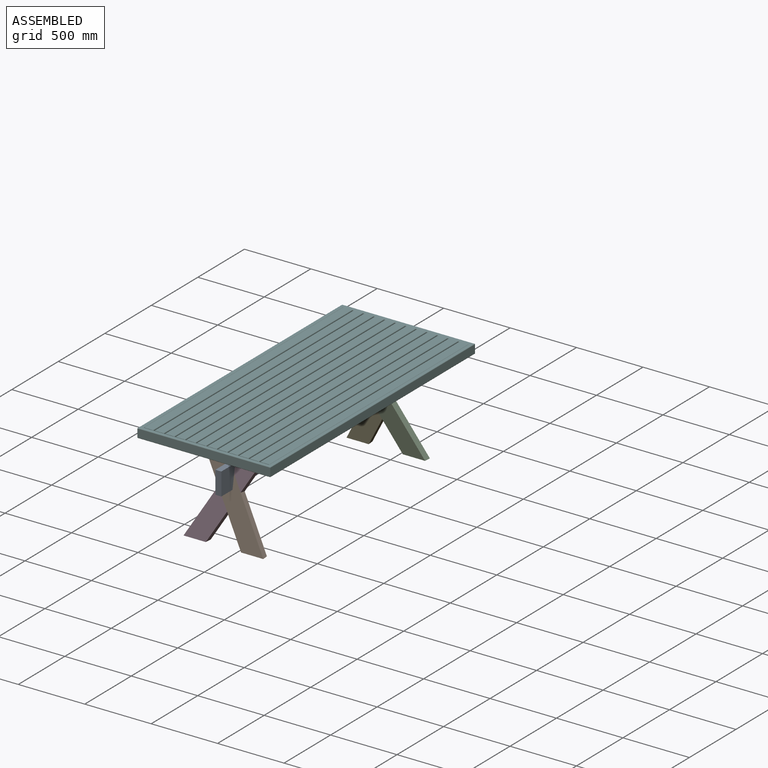
[diagram: assembled view]
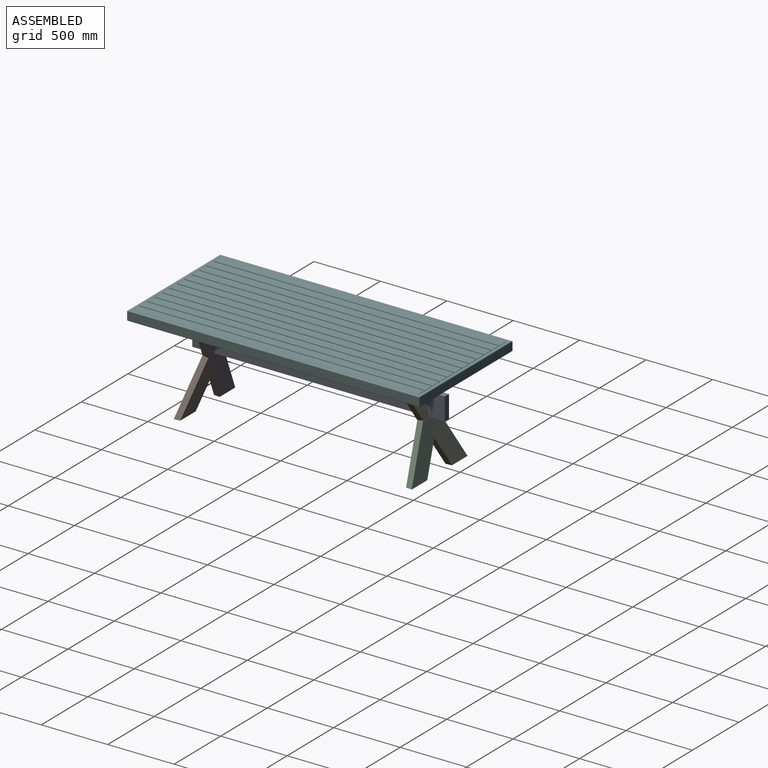
[diagram: assembled view, second angle]
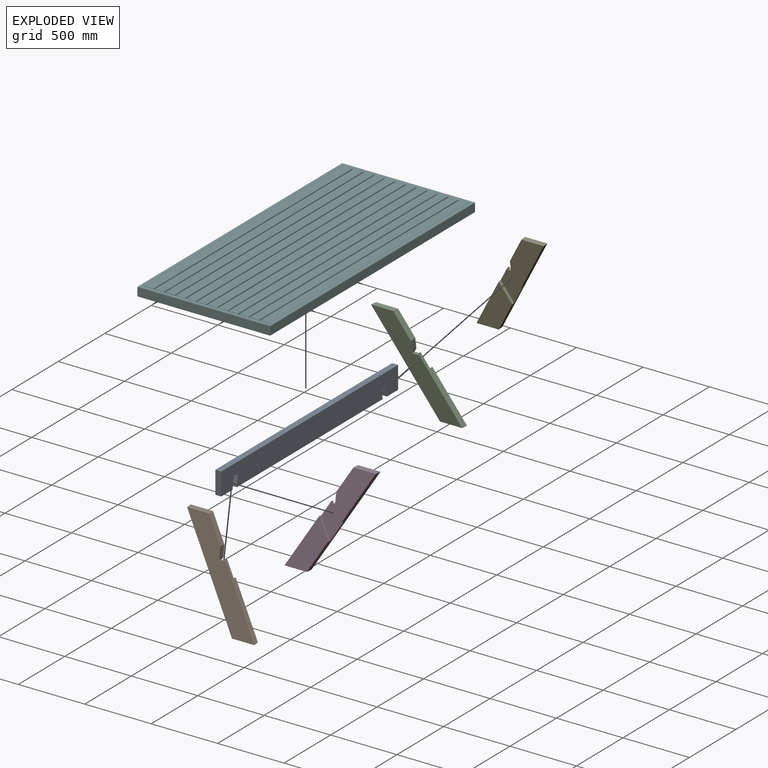
[diagram: exploded view]
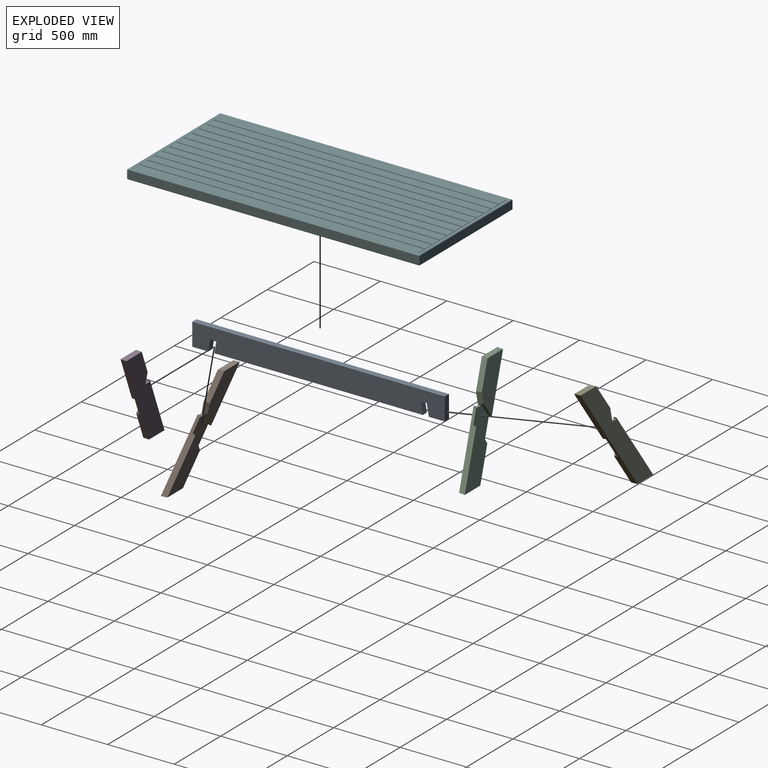
[diagram: exploded view, second angle]
ASSEMBLY  parts=6 mates=4
PART A: 14 faces, bbox 45x1900x170 mm
  f0: plane 1568.61x45mm, normal (0,0,-1), area 70587.5mm2, adj f2,f3,f9,f12
  f1: plane 120x45mm, normal (0,0,-1), area 5400mm2, adj f2,f3,f6,f10
  f2: plane 1900x170mm, normal (-1,0,0), area 315132.1mm2, adj f0,f1,f4,f5,f6,f7,f8,f9
  f3: plane 1900x170mm, normal (1,0,0), area 315132.1mm2, adj f0,f1,f4,f5,f6,f7,f8,f9
  f4: plane 120x45mm, normal (0,0,-1), area 5400mm2, adj f2,f3,f7,f11
  f5: plane 1900x45mm, normal (0,0,1), area 85500mm2, adj f2,f3,f6,f7
  f6: plane 170x45mm, normal (0,-1,0), area 7650mm2, adj f1,f2,f3,f5
  f7: plane 170x45mm, normal (0,1,0), area 7650mm2, adj f2,f3,f4,f5
  f8: plane 45x44.32mm, normal (0,-0.17,-0.98), area 2025mm2, adj f2,f3,f9,f10
  f9: plane 82.19x45mm, normal (0,-0.98,0.17), area 3755.4mm2, adj f0,f2,f3,f8
  f10: plane 90x45mm, normal (0,0.98,-0.17), area 4112.5mm2, adj f1,f2,f3,f8
  f11: plane 90x45mm, normal (0,-0.98,-0.17), area 4112.5mm2, adj f2,f3,f4,f13
  f12: plane 82.19x45mm, normal (0,0.98,0.17), area 3755.4mm2, adj f0,f2,f3,f13
  f13: plane 45x44.32mm, normal (0,0.17,-0.98), area 2025mm2, adj f2,f3,f11,f12
PART B: 14 faces, bbox 600.4x45x750 mm
  f0: plane 191.03x110.29mm, normal (-0.87,0,0.5), area 9720mm2, adj f2,f5,f10,f13
  f1: plane 481.03x277.72mm, normal (-0.87,0,0.5), area 22034.1mm2, adj f4,f5,f7,f8,f9,f12
  f2: plane 375x277.72mm, normal (0,-1,0), area 49771.2mm2, adj f0,f3,f6,f10,f13
  f3: plane 750x433.01mm, normal (0.87,0,-0.5), area 34791.6mm2, adj f2,f4,f5,f6,f7,f8,f12,f13
  f4: plane 367.07x295.64mm, normal (0,-1,0), area 49319.5mm2, adj f1,f3,f7,f12
  f5: plane 742.07x595.86mm, normal (0,1,0), area 121948.9mm2, adj f0,f1,f3,f9,f10,f11,f12,f13
  f6: plane 106.03x61.22mm, normal (-0.87,0,-0.5), area 2754.7mm2, adj f2,f3,f8,f10
  f7: plane 145x83.72mm, normal (0.87,0,0.5), area 3767.2mm2, adj f1,f3,f4,f8
  f8: plane 251.03x167.43mm, normal (0,-1,0), area 22858.1mm2, adj f1,f3,f6,f7,f9,f10,f11
  f9: plane 22.5x12.06mm, normal (1,0,0), area 271.3mm2, adj f1,f5,f8,f11
  f10: plane 90x45mm, normal (-1,0,0), area 3778.7mm2, adj f0,f2,f5,f6,f8,f11
  f11: plane 45x22.5mm, normal (0,0,1), area 1012.5mm2, adj f5,f8,f9,f10
  f12: plane 172.01x45mm, normal (0,-0.17,-0.98), area 7650.7mm2, adj f1,f3,f4,f5
  f13: plane 172.01x45mm, normal (0,0.17,0.98), area 7650.7mm2, adj f0,f2,f3,f5
PART C: 14 faces, bbox 600.4x45x750 mm
  f0: plane 191.03x110.29mm, normal (-0.87,0,0.5), area 9720mm2, adj f2,f5,f10,f12
  f1: plane 481.03x277.72mm, normal (-0.87,0,0.5), area 22034.1mm2, adj f4,f5,f7,f8,f9,f13
  f2: plane 367.07x273.14mm, normal (0,-1,0), area 48442.7mm2, adj f0,f3,f6,f10,f12
  f3: plane 750x433.01mm, normal (0.87,0,-0.5), area 34791.6mm2, adj f2,f4,f5,f6,f7,f8,f12,f13
  f4: plane 375x300.22mm, normal (0,-1,0), area 50648.1mm2, adj f1,f3,f7,f13
  f5: plane 742.07x595.86mm, normal (0,1,0), area 121948.9mm2, adj f0,f1,f3,f9,f10,f11,f12,f13
  f6: plane 106.03x61.22mm, normal (-0.87,0,-0.5), area 2754.7mm2, adj f2,f3,f8,f10
  f7: plane 145x83.72mm, normal (0.87,0,0.5), area 3767.2mm2, adj f1,f3,f4,f8
  f8: plane 251.03x167.43mm, normal (0,-1,0), area 22858.1mm2, adj f1,f3,f6,f7,f9,f10,f11
  f9: plane 22.5x12.06mm, normal (1,0,0), area 271.3mm2, adj f1,f5,f8,f11
  f10: plane 90x45mm, normal (-1,0,0), area 3778.7mm2, adj f0,f2,f5,f6,f8,f11
  f11: plane 45x22.5mm, normal (0,0,1), area 1012.5mm2, adj f5,f8,f9,f10
  f12: plane 172.01x45mm, normal (0,-0.17,0.98), area 7650.7mm2, adj f0,f2,f3,f5
  f13: plane 172.01x45mm, normal (0,0.17,-0.98), area 7650.7mm2, adj f1,f3,f4,f5
PART D: same geometry as C
PART E: same geometry as B
PART F: 217 faces, bbox 1000x2200x70 mm
  f0: plane 356.89x42mm, normal (-1,0,0), area 14833.6mm2, adj f44,f60,f112,f216
  f1: plane 356.89x42mm, normal (1,0,0), area 14833.6mm2, adj f44,f60,f189,f216
  f2: plane 356.89x42mm, normal (1,0,0), area 14833.6mm2, adj f20,f60,f184,f215
  f3: plane 356.89x42mm, normal (-1,0,0), area 14833.6mm2, adj f20,f60,f107,f215
  f4: plane 356.89x42mm, normal (1,0,0), area 14989.2mm2, adj f16,f60,f68,f208
  f5: plane 647.62x42mm, normal (1,0,0), area 27199.8mm2, adj f60,f69,f72,f207
  f6: plane 647.62x42mm, normal (1,0,0), area 27199.8mm2, adj f60,f63,f71,f205
  f7: plane 45x9.5mm, normal (0,0,1), area 427.5mm2, adj f71,f72,f199,f210
  f8: plane 45x9.5mm, normal (0,0,1), area 427.5mm2, adj f63,f64,f199,f210
  f9: plane 45x9.5mm, normal (0,0,1), area 427.5mm2, adj f68,f69,f199,f210
  f10: plane 144x65mm, normal (0,1,0), area 6266.5mm2, adj f52,f60,f65,f82,f195,f199,f206,f210
  f11: plane 23x9.5mm, normal (0,-1,0), area 218.5mm2, adj f14,f83,f188,f201
  f12: plane 45x9.5mm, normal (0,0,1), area 427.5mm2, adj f71,f72,f188,f201
  f13: plane 401.89x9.5mm, normal (0,0,1), area 3817.9mm2, adj f15,f63,f188,f201
  f14: plane 401.89x9.5mm, normal (0,0,1), area 3817.9mm2, adj f11,f69,f188,f201
  f15: plane 23x9.5mm, normal (0,1,0), area 218.5mm2, adj f13,f82,f188,f201
  f16: plane 144x65mm, normal (0,-1,0), area 6266.5mm2, adj f4,f60,f67,f83,f199,f200,f208,f210
  f17: plane 45x9.5mm, normal (0,0,1), area 427.5mm2, adj f71,f72,f177,f190
  f18: plane 45x9.5mm, normal (0,0,1), area 427.5mm2, adj f63,f177,f190,f215
  f19: plane 45x9.5mm, normal (0,0,1), area 427.5mm2, adj f69,f177,f190,f216
  f20: plane 600x65mm, normal (0,1,0), area 26729.5mm2, adj f2,f3,f60,f82,f107,f111,f118,f122
  f21: plane 45x9.5mm, normal (0,0,1), area 427.5mm2, adj f71,f72,f166,f179
  f22: plane 45x9.5mm, normal (0,0,1), area 427.5mm2, adj f63,f166,f179,f215
  f23: plane 45x9.5mm, normal (0,0,1), area 427.5mm2, adj f69,f166,f179,f216
  f24: plane 45x9.5mm, normal (0,0,1), area 427.5mm2, adj f71,f72,f155,f168
  f25: plane 45x9.5mm, normal (0,0,1), area 427.5mm2, adj f63,f155,f168,f215
  f26: plane 45x9.5mm, normal (0,0,1), area 427.5mm2, adj f69,f155,f168,f216
  f27: plane 45x9.5mm, normal (0,0,1), area 427.5mm2, adj f71,f72,f144,f157
  f28: plane 45x9.5mm, normal (0,0,1), area 427.5mm2, adj f63,f144,f157,f215
  f29: plane 45x9.5mm, normal (0,0,1), area 427.5mm2, adj f69,f144,f157,f216
  f30: plane 45x9.5mm, normal (0,0,1), area 427.5mm2, adj f71,f72,f133,f146
  f31: plane 45x9.5mm, normal (0,0,1), area 427.5mm2, adj f63,f133,f146,f215
  f32: plane 45x9.5mm, normal (0,0,1), area 427.5mm2, adj f69,f133,f146,f216
  f33: plane 45x9.5mm, normal (0,0,1), area 427.5mm2, adj f71,f72,f122,f135
  f34: plane 45x9.5mm, normal (0,0,1), area 427.5mm2, adj f63,f122,f135,f215
  f35: plane 45x9.5mm, normal (0,0,1), area 427.5mm2, adj f69,f122,f135,f216
  f36: plane 45x9.5mm, normal (0,0,1), area 427.5mm2, adj f71,f72,f111,f124
  f37: plane 45x9.5mm, normal (0,0,1), area 427.5mm2, adj f63,f111,f124,f215
  f38: plane 45x9.5mm, normal (0,0,1), area 427.5mm2, adj f69,f111,f124,f216
  f39: plane 23x9.5mm, normal (0,-1,0), area 218.5mm2, adj f42,f83,f100,f113
  f40: plane 45x9.5mm, normal (0,0,1), area 427.5mm2, adj f71,f72,f100,f113
  f41: plane 401.89x9.5mm, normal (0,0,1), area 3817.9mm2, adj f43,f63,f100,f113
  f42: plane 401.89x9.5mm, normal (0,0,1), area 3817.9mm2, adj f39,f69,f100,f113
  f43: plane 23x9.5mm, normal (0,1,0), area 218.5mm2, adj f41,f82,f100,f113
  f44: plane 600x65mm, normal (0,-1,0), area 26729.5mm2, adj f0,f1,f60,f83,f111,f112,f122,f123
  f45: plane 45x9.5mm, normal (0,0,1), area 427.5mm2, adj f71,f72,f93,f102
  f46: plane 356.89x42mm, normal (-1,0,0), area 14989.2mm2, adj f53,f60,f62,f85
  f47: plane 647.62x42mm, normal (-1,0,0), area 27199.8mm2, adj f60,f63,f71,f87
  f48: plane 647.62x42mm, normal (-1,0,0), area 27199.8mm2, adj f60,f69,f72,f86
  f49: plane 356.89x42mm, normal (-1,0,0), area 14989.2mm2, adj f58,f60,f70,f89
  f50: plane 45x9.5mm, normal (0,0,1), area 427.5mm2, adj f62,f63,f93,f102
  f51: plane 45x9.5mm, normal (0,0,1), area 427.5mm2, adj f69,f70,f93,f102
  f52: plane 356.89x42mm, normal (1,0,0), area 14989.2mm2, adj f10,f60,f64,f206
  f53: plane 144x65mm, normal (0,1,0), area 6266.5mm2, adj f46,f60,f61,f82,f85,f93,f96,f102
  f54: plane 1000x60mm, normal (0,-1,0), area 60000mm2, adj f55,f57,f76,f78
  f55: plane 2200x60mm, normal (1,0,0), area 132000mm2, adj f54,f56,f74,f77
  f56: plane 1000x60mm, normal (0,1,0), area 60000mm2, adj f55,f57,f73,f79
  f57: plane 2200x60mm, normal (-1,0,0), area 132000mm2, adj f54,f56,f75,f80
  f58: plane 144x65mm, normal (0,-1,0), area 6266.5mm2, adj f49,f60,f66,f83,f89,f93,f101,f102
  f59: plane 2190x990mm, normal (0,0,1), area 113184mm2, adj f77,f78,f79,f80,f81,f82,f83,f84
  f60: plane 2190x990mm, normal (0,0,-1), area 320462mm2, adj f0,f1,f2,f3,f4,f5,f6,f10
  f61: plane 356.89x42mm, normal (1,0,0), area 14989.2mm2, adj f53,f60,f62,f96
  f62: plane 144x42mm, normal (0,-1,0), area 6048mm2, adj f46,f50,f60,f61,f85,f96
  f63: plane 944x42mm, normal (0,1,0), area 39648mm2, adj f6,f8,f13,f18,f22,f25,f28,f31
  f64: plane 144x42mm, normal (0,-1,0), area 6048mm2, adj f8,f52,f60,f65,f195,f206
  f65: plane 356.89x42mm, normal (-1,0,0), area 14989.2mm2, adj f10,f60,f64,f195
  f66: plane 356.89x42mm, normal (1,0,0), area 14989.2mm2, adj f58,f60,f70,f101
  f67: plane 356.89x42mm, normal (-1,0,0), area 14989.2mm2, adj f16,f60,f68,f200
  f68: plane 144x42mm, normal (0,1,0), area 6048mm2, adj f4,f9,f60,f67,f200,f208
  f69: plane 944x42mm, normal (0,-1,0), area 39648mm2, adj f5,f9,f14,f19,f23,f26,f29,f32
  f70: plane 144x42mm, normal (0,1,0), area 6048mm2, adj f49,f51,f60,f66,f89,f101
  f71: plane 944x42mm, normal (0,-1,0), area 39648mm2, adj f6,f7,f12,f17,f21,f24,f27,f30
  f72: plane 944x42mm, normal (0,1,0), area 39648mm2, adj f5,f7,f12,f17,f21,f24,f27,f30
  f73: cylinder r=5mm len=1000mm, axis (-1,0,0), area 7825.4mm2, adj f56,f60,f74,f75
  f74: cylinder r=5mm len=2200mm, axis (0,1,0), area 17250.2mm2, adj f55,f60,f73,f76
  f75: cylinder r=5mm len=2200mm, axis (0,-1,0), area 17250.2mm2, adj f57,f60,f73,f76
  f76: cylinder r=5mm len=1000mm, axis (1,0,0), area 7825.4mm2, adj f54,f60,f74,f75
  f77: cylinder r=5mm len=2200mm, axis (0,-1,0), area 17250.2mm2, adj f55,f59,f78,f79
  f78: cylinder r=5mm len=1000mm, axis (-1,0,0), area 7825.4mm2, adj f54,f59,f77,f80
  f79: cylinder r=5mm len=1000mm, axis (1,0,0), area 7825.4mm2, adj f56,f59,f77,f80
  f80: cylinder r=5mm len=2200mm, axis (0,1,0), area 17250.2mm2, adj f57,f59,f78,f79
  f81: cylinder r=5mm len=2154mm, axis (0,1,0), area 16867.5mm2, adj f59,f82,f83,f90
  f82: cylinder r=5mm len=954mm, axis (1,0,0), area 7442.7mm2, adj f10,f15,f20,f43,f53,f59,f81,f84
  f83: cylinder r=5mm len=954mm, axis (-1,0,0), area 7442.7mm2, adj f11,f16,f39,f44,f58,f59,f81,f84
  f84: cylinder r=5mm len=2154mm, axis (0,-1,0), area 13463.2mm2, adj f59,f82,f83,f209,f213,f214
  f85: plane 356.89x70mm, normal (0,0,-1), area 24981.9mm2, adj f46,f53,f62,f93
  f86: plane 647.62x70mm, normal (0,0,-1), area 45333.1mm2, adj f48,f69,f72,f93
  f87: plane 647.62x70mm, normal (0,0,-1), area 45333.1mm2, adj f47,f63,f71,f93
  f88: plane 70x5mm, normal (0,1,0), area 339.3mm2, adj f83,f90,f91,f92
  f89: plane 356.89x70mm, normal (0,0,-1), area 24981.9mm2, adj f49,f58,f70,f93
  f90: cylinder r=5mm len=2144mm, axis (0,1,0), area 16838.9mm2, adj f81,f88,f91,f94
  f91: plane 2144x60mm, normal (0,0,1), area 128640mm2, adj f88,f90,f92,f94
  f92: cylinder r=5mm len=2144mm, axis (0,1,0), area 16838.9mm2, adj f88,f91,f93,f94
  f93: plane 2144x23mm, normal (-1,0,0), area 49312mm2, adj f45,f50,f51,f53,f58,f85,f86,f87
  f94: plane 70x5mm, normal (0,-1,0), area 339.3mm2, adj f82,f90,f91,f92
  f95: plane 647.62x70mm, normal (0,0,-1), area 45333.1mm2, adj f63,f71,f100,f102
  f96: plane 356.89x64.5mm, normal (0,0,-1), area 23019.1mm2, adj f53,f61,f62,f102
  f97: plane 647.62x70mm, normal (0,0,-1), area 45333.1mm2, adj f69,f72,f100,f102
  f98: plane 70x5mm, normal (0,1,0), area 339.3mm2, adj f83,f99,f103,f104
  f99: cylinder r=5mm len=2144mm, axis (0,1,0), area 16838.9mm2, adj f98,f100,f104,f105
  f100: plane 2144x23mm, normal (-1,0,0), area 49312mm2, adj f39,f40,f41,f42,f43,f95,f97,f99
  f101: plane 356.89x64.5mm, normal (0,0,-1), area 23019.1mm2, adj f58,f66,f70,f102
  f102: plane 2144x23mm, normal (1,0,0), area 49312mm2, adj f45,f50,f51,f53,f58,f95,f96,f97
  f103: cylinder r=5mm len=2144mm, axis (0,1,0), area 16838.9mm2, adj f98,f102,f104,f105
  f104: plane 2144x60mm, normal (0,0,1), area 128640mm2, adj f98,f99,f103,f105
  f105: plane 70x5mm, normal (0,-1,0), area 339.3mm2, adj f82,f99,f103,f104
  f106: plane 647.62x70mm, normal (0,0,-1), area 45333.1mm2, adj f63,f71,f111,f113
  f107: plane 356.89x57mm, normal (0,0,-1), area 20342.4mm2, adj f3,f20,f111,f215
  f108: plane 647.62x70mm, normal (0,0,-1), area 45333.1mm2, adj f69,f72,f111,f113
  f109: plane 70x5mm, normal (0,1,0), area 339.3mm2, adj f83,f110,f114,f115
  f110: cylinder r=5mm len=2144mm, axis (0,1,0), area 16838.9mm2, adj f109,f111,f115,f116
  f111: plane 2144x23mm, normal (-1,0,0), area 49312mm2, adj f20,f36,f37,f38,f44,f106,f107,f108
  f112: plane 356.89x57mm, normal (0,0,-1), area 20342.4mm2, adj f0,f44,f111,f216
  f113: plane 2144x23mm, normal (1,0,0), area 49312mm2, adj f39,f40,f41,f42,f43,f106,f108,f114
  f114: cylinder r=5mm len=2144mm, axis (0,1,0), area 16838.9mm2, adj f109,f113,f115,f116
  f115: plane 2144x60mm, normal (0,0,1), area 128640mm2, adj f109,f110,f114,f116
  f116: plane 70x5mm, normal (0,-1,0), area 339.3mm2, adj f82,f110,f114,f115
  f117: plane 647.62x70mm, normal (0,0,-1), area 45333.1mm2, adj f63,f71,f122,f124
  f118: plane 356.89x70mm, normal (0,0,-1), area 24981.9mm2, adj f20,f122,f124,f215
  f119: plane 647.62x70mm, normal (0,0,-1), area 45333.1mm2, adj f69,f72,f122,f124
  f120: plane 70x5mm, normal (0,1,0), area 339.3mm2, adj f83,f121,f125,f126
  f121: cylinder r=5mm len=2144mm, axis (0,1,0), area 16838.9mm2, adj f120,f122,f126,f127
  f122: plane 2144x23mm, normal (-1,0,0), area 49312mm2, adj f20,f33,f34,f35,f44,f117,f118,f119
  f123: plane 356.89x70mm, normal (0,0,-1), area 24981.9mm2, adj f44,f122,f124,f216
  f124: plane 2144x23mm, normal (1,0,0), area 49312mm2, adj f20,f36,f37,f38,f44,f117,f118,f119
  f125: cylinder r=5mm len=2144mm, axis (0,1,0), area 16838.9mm2, adj f120,f124,f126,f127
  f126: plane 2144x60mm, normal (0,0,1), area 128640mm2, adj f120,f121,f125,f127
  f127: plane 70x5mm, normal (0,-1,0), area 339.3mm2, adj f82,f121,f125,f126
  f128: plane 647.62x70mm, normal (0,0,-1), area 45333.1mm2, adj f63,f71,f133,f135
  f129: plane 356.89x70mm, normal (0,0,-1), area 24981.9mm2, adj f20,f133,f135,f215
  f130: plane 647.62x70mm, normal (0,0,-1), area 45333.1mm2, adj f69,f72,f133,f135
  f131: plane 70x5mm, normal (0,1,0), area 339.3mm2, adj f83,f132,f136,f137
  f132: cylinder r=5mm len=2144mm, axis (0,1,0), area 16838.9mm2, adj f131,f133,f137,f138
  f133: plane 2144x23mm, normal (-1,0,0), area 49312mm2, adj f20,f30,f31,f32,f44,f128,f129,f130
  f134: plane 356.89x70mm, normal (0,0,-1), area 24981.9mm2, adj f44,f133,f135,f216
  f135: plane 2144x23mm, normal (1,0,0), area 49312mm2, adj f20,f33,f34,f35,f44,f128,f129,f130
  f136: cylinder r=5mm len=2144mm, axis (0,1,0), area 16838.9mm2, adj f131,f135,f137,f138
  f137: plane 2144x60mm, normal (0,0,1), area 128640mm2, adj f131,f132,f136,f138
  f138: plane 70x5mm, normal (0,-1,0), area 339.3mm2, adj f82,f132,f136,f137
  f139: plane 647.62x70mm, normal (0,0,-1), area 45333.1mm2, adj f63,f71,f144,f146
  f140: plane 356.89x70mm, normal (0,0,-1), area 24981.9mm2, adj f20,f144,f146,f215
  f141: plane 647.62x70mm, normal (0,0,-1), area 45333.1mm2, adj f69,f72,f144,f146
  f142: plane 70x5mm, normal (0,1,0), area 339.3mm2, adj f83,f143,f147,f148
  f143: cylinder r=5mm len=2144mm, axis (0,1,0), area 16838.9mm2, adj f142,f144,f148,f149
  f144: plane 2144x23mm, normal (-1,0,0), area 49312mm2, adj f20,f27,f28,f29,f44,f139,f140,f141
  f145: plane 356.89x70mm, normal (0,0,-1), area 24981.9mm2, adj f44,f144,f146,f216
  f146: plane 2144x23mm, normal (1,0,0), area 49312mm2, adj f20,f30,f31,f32,f44,f139,f140,f141
  f147: cylinder r=5mm len=2144mm, axis (0,1,0), area 16838.9mm2, adj f142,f146,f148,f149
  f148: plane 2144x60mm, normal (0,0,1), area 128640mm2, adj f142,f143,f147,f149
  f149: plane 70x5mm, normal (0,-1,0), area 339.3mm2, adj f82,f143,f147,f148
  f150: plane 647.62x70mm, normal (0,0,-1), area 45333.1mm2, adj f63,f71,f155,f157
  f151: plane 356.89x70mm, normal (0,0,-1), area 24981.9mm2, adj f20,f155,f157,f215
  f152: plane 647.62x70mm, normal (0,0,-1), area 45333.1mm2, adj f69,f72,f155,f157
  f153: plane 70x5mm, normal (0,1,0), area 339.3mm2, adj f83,f154,f158,f159
  f154: cylinder r=5mm len=2144mm, axis (0,1,0), area 16838.9mm2, adj f153,f155,f159,f160
  f155: plane 2144x23mm, normal (-1,0,0), area 49312mm2, adj f20,f24,f25,f26,f44,f150,f151,f152
  f156: plane 356.89x70mm, normal (0,0,-1), area 24981.9mm2, adj f44,f155,f157,f216
  f157: plane 2144x23mm, normal (1,0,0), area 49312mm2, adj f20,f27,f28,f29,f44,f150,f151,f152
  f158: cylinder r=5mm len=2144mm, axis (0,1,0), area 16838.9mm2, adj f153,f157,f159,f160
  f159: plane 2144x60mm, normal (0,0,1), area 128640mm2, adj f153,f154,f158,f160
  f160: plane 70x5mm, normal (0,-1,0), area 339.3mm2, adj f82,f154,f158,f159
  f161: plane 647.62x70mm, normal (0,0,-1), area 45333.1mm2, adj f63,f71,f166,f168
  f162: plane 356.89x70mm, normal (0,0,-1), area 24981.9mm2, adj f20,f166,f168,f215
  f163: plane 647.62x70mm, normal (0,0,-1), area 45333.1mm2, adj f69,f72,f166,f168
  f164: plane 70x5mm, normal (0,1,0), area 339.3mm2, adj f83,f165,f169,f170
  f165: cylinder r=5mm len=2144mm, axis (0,1,0), area 16838.9mm2, adj f164,f166,f170,f171
  f166: plane 2144x23mm, normal (-1,0,0), area 49312mm2, adj f20,f21,f22,f23,f44,f161,f162,f163
  f167: plane 356.89x70mm, normal (0,0,-1), area 24981.9mm2, adj f44,f166,f168,f216
  f168: plane 2144x23mm, normal (1,0,0), area 49312mm2, adj f20,f24,f25,f26,f44,f161,f162,f163
  f169: cylinder r=5mm len=2144mm, axis (0,1,0), area 16838.9mm2, adj f164,f168,f170,f171
  f170: plane 2144x60mm, normal (0,0,1), area 128640mm2, adj f164,f165,f169,f171
  f171: plane 70x5mm, normal (0,-1,0), area 339.3mm2, adj f82,f165,f169,f170
  f172: plane 647.62x70mm, normal (0,0,-1), area 45333.1mm2, adj f63,f71,f177,f179
  f173: plane 356.89x70mm, normal (0,0,-1), area 24981.9mm2, adj f20,f177,f179,f215
  f174: plane 647.62x70mm, normal (0,0,-1), area 45333.1mm2, adj f69,f72,f177,f179
  f175: plane 70x5mm, normal (0,1,0), area 339.3mm2, adj f83,f176,f180,f181
  f176: cylinder r=5mm len=2144mm, axis (0,1,0), area 16838.9mm2, adj f175,f177,f181,f182
  f177: plane 2144x23mm, normal (-1,0,0), area 49312mm2, adj f17,f18,f19,f20,f44,f172,f173,f174
  f178: plane 356.89x70mm, normal (0,0,-1), area 24981.9mm2, adj f44,f177,f179,f216
  f179: plane 2144x23mm, normal (1,0,0), area 49312mm2, adj f20,f21,f22,f23,f44,f172,f173,f174
  f180: cylinder r=5mm len=2144mm, axis (0,1,0), area 16838.9mm2, adj f175,f179,f181,f182
  f181: plane 2144x60mm, normal (0,0,1), area 128640mm2, adj f175,f176,f180,f182
  f182: plane 70x5mm, normal (0,-1,0), area 339.3mm2, adj f82,f176,f180,f181
  f183: plane 647.62x70mm, normal (0,0,-1), area 45333.1mm2, adj f63,f71,f188,f190
  f184: plane 356.89x56.5mm, normal (0,0,-1), area 20164mm2, adj f2,f20,f190,f215
  f185: plane 647.62x70mm, normal (0,0,-1), area 45333.1mm2, adj f69,f72,f188,f190
  f186: plane 70x5mm, normal (0,1,0), area 339.3mm2, adj f83,f187,f191,f192
  f187: cylinder r=5mm len=2144mm, axis (0,1,0), area 16838.9mm2, adj f186,f188,f192,f193
  f188: plane 2144x23mm, normal (-1,0,0), area 49312mm2, adj f11,f12,f13,f14,f15,f183,f185,f187
  f189: plane 356.89x56.5mm, normal (0,0,-1), area 20164mm2, adj f1,f44,f190,f216
  f190: plane 2144x23mm, normal (1,0,0), area 49312mm2, adj f17,f18,f19,f20,f44,f183,f184,f185
  f191: cylinder r=5mm len=2144mm, axis (0,1,0), area 16838.9mm2, adj f186,f190,f192,f193
  f192: plane 2144x60mm, normal (0,0,1), area 128640mm2, adj f186,f187,f191,f193
  f193: plane 70x5mm, normal (0,-1,0), area 339.3mm2, adj f82,f187,f191,f192
  f194: plane 647.62x70mm, normal (0,0,-1), area 45333.1mm2, adj f63,f71,f199,f201
  f195: plane 356.89x65mm, normal (0,0,-1), area 23197.5mm2, adj f10,f64,f65,f199
  f196: plane 647.62x70mm, normal (0,0,-1), area 45333.1mm2, adj f69,f72,f199,f201
  f197: plane 70x5mm, normal (0,1,0), area 339.3mm2, adj f83,f198,f202,f203
  f198: cylinder r=5mm len=2144mm, axis (0,1,0), area 16838.9mm2, adj f197,f199,f203,f204
  f199: plane 2144x23mm, normal (-1,0,0), area 49312mm2, adj f7,f8,f9,f10,f16,f194,f195,f196
  f200: plane 356.89x65mm, normal (0,0,-1), area 23197.5mm2, adj f16,f67,f68,f199
  f201: plane 2144x23mm, normal (1,0,0), area 49312mm2, adj f11,f12,f13,f14,f15,f194,f196,f202
  f202: cylinder r=5mm len=2144mm, axis (0,1,0), area 16838.9mm2, adj f197,f201,f203,f204
  f203: plane 2144x60mm, normal (0,0,1), area 128640mm2, adj f197,f198,f202,f204
  f204: plane 70x5mm, normal (0,-1,0), area 339.3mm2, adj f82,f198,f202,f203
  f205: plane 647.62x69.5mm, normal (0,0,-1), area 45009.2mm2, adj f6,f63,f71,f210
  f206: plane 356.89x69.5mm, normal (0,0,-1), area 24803.5mm2, adj f10,f52,f64,f210
  f207: plane 647.62x69.5mm, normal (0,0,-1), area 45009.2mm2, adj f5,f69,f72,f210
  f208: plane 356.89x69.5mm, normal (0,0,-1), area 24803.5mm2, adj f4,f16,f68,f210
  f209: plane 69.75x5mm, normal (0,1,0), area 338.7mm2, adj f83,f84,f211,f212,f213
  f210: plane 2144x23mm, normal (1,0,0), area 49312mm2, adj f7,f8,f9,f10,f16,f205,f206,f207
  f211: cylinder r=5mm len=2144mm, axis (0,1,0), area 16838.9mm2, adj f209,f210,f212,f214
  f212: plane 2144x60mm, normal (0,0,1), area 128640mm2, adj f209,f211,f213,f214
  f213: cylinder r=5mm len=2144mm, axis (0,1,0), area 13434.7mm2, adj f84,f209,f212,f214
  f214: plane 69.75x5mm, normal (0,-1,0), area 338.7mm2, adj f82,f84,f211,f212,f213
  f215: plane 600x42mm, normal (0,-0.98,0.17), area 25588.8mm2, adj f2,f3,f18,f22,f25,f28,f31,f34
  f216: plane 600x42mm, normal (0,0.98,0.17), area 25588.8mm2, adj f0,f1,f19,f23,f26,f29,f32,f35
PLACE A rot(axis=(0,0,-1),180deg) t=(110.17,-2221.33,0.81)mm
PLACE B rot(axis=(0,-0.09,-1),180deg) t=(110.17,-1609.37,-88.56)mm fixed
PLACE C rot(axis=(0,0.09,-1),180deg) t=(110.17,-485.19,-9.55)mm
PLACE D rot(axis=(-1,0,0),10deg) t=(110.17,-2057.46,-9.55)mm fixed
PLACE E rot(axis=(1,0,0),10deg) t=(110.17,-933.28,-88.56)mm
PLACE F t=(110.39,-1277.23,317.75)mm
MATE fastened D.f5 <-> F.f215  axis (0,0.98,-0.17) through (410.39,-1992.34,359.75)mm
MATE fastened C.f11 <-> A.f8  axis (0,-0.17,0.98) through (110.17,-479.35,86.9)mm
MATE fastened E.f8 <-> C.f8  axis (0,-0.98,-0.17) through (110.17,-461.83,-12.48)mm
MATE fastened A.f13 <-> B.f11  axis (0,-0.17,-0.98) through (110.17,-2063.3,86.9)mm
